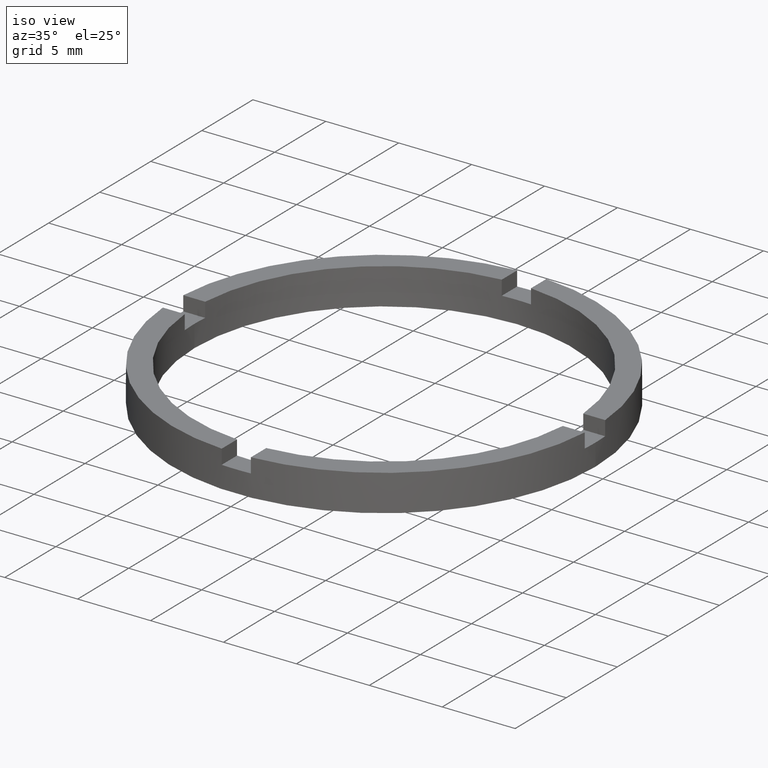
[diagram: clean part render]
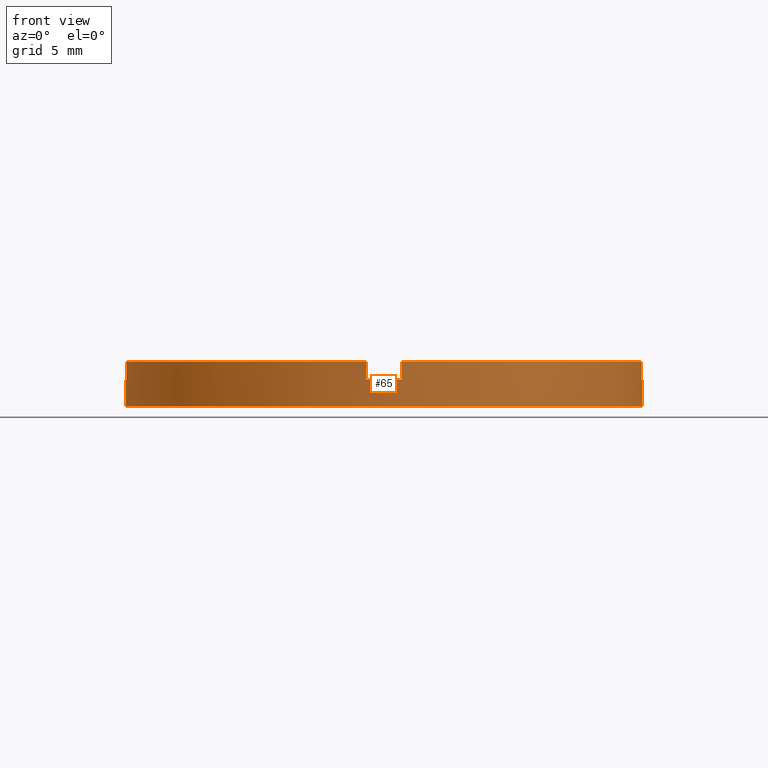
[diagram: tour spotlight — one face highlighted and labeled with its STEP entity id]
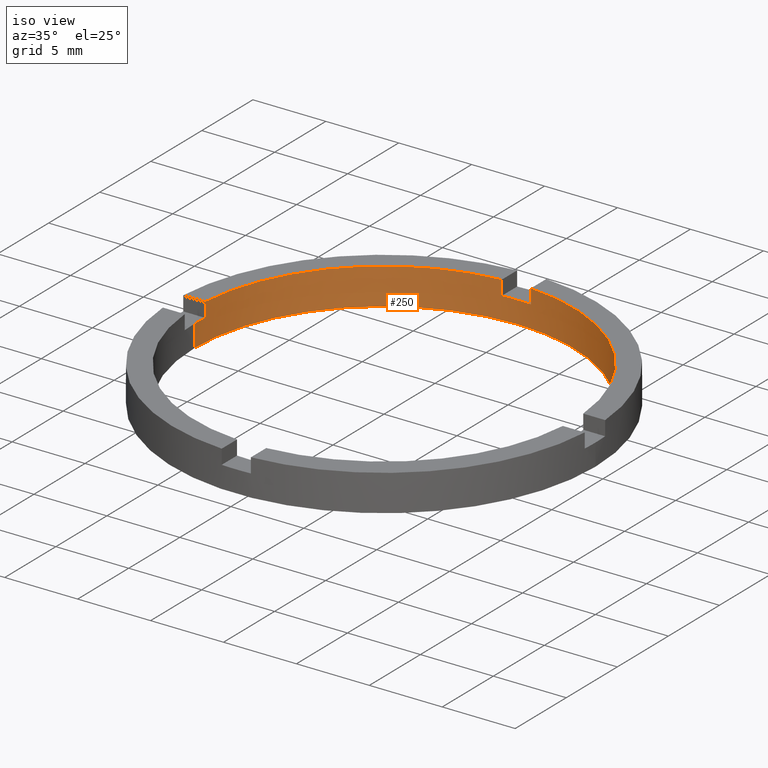
[diagram: tour spotlight — one face highlighted and labeled with its STEP entity id]
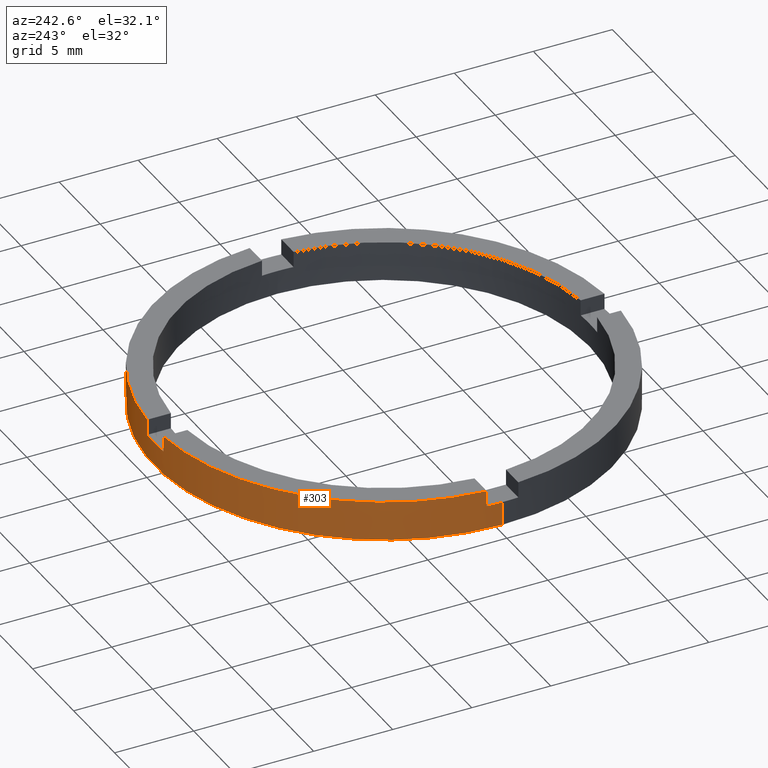
[diagram: tour spotlight — one face highlighted and labeled with its STEP entity id]
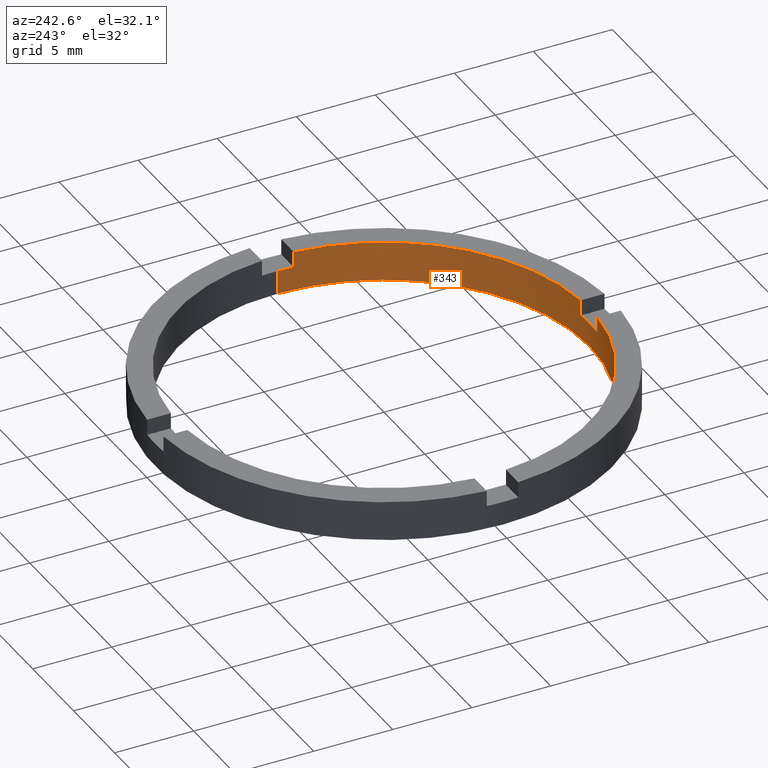
[diagram: tour spotlight — one face highlighted and labeled with its STEP entity id]
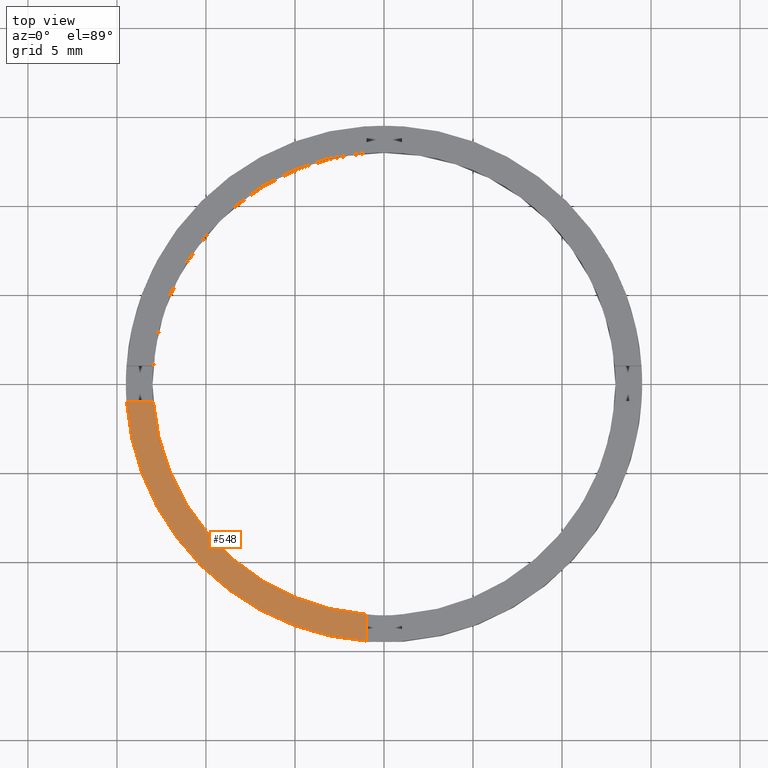
[diagram: tour spotlight — one face highlighted and labeled with its STEP entity id]
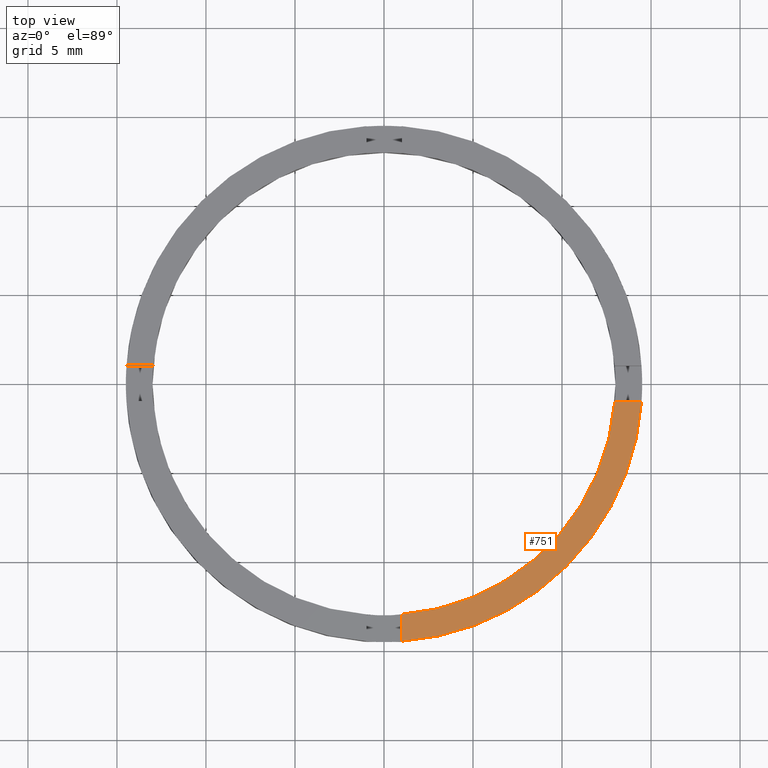
[diagram: tour spotlight — one face highlighted and labeled with its STEP entity id]
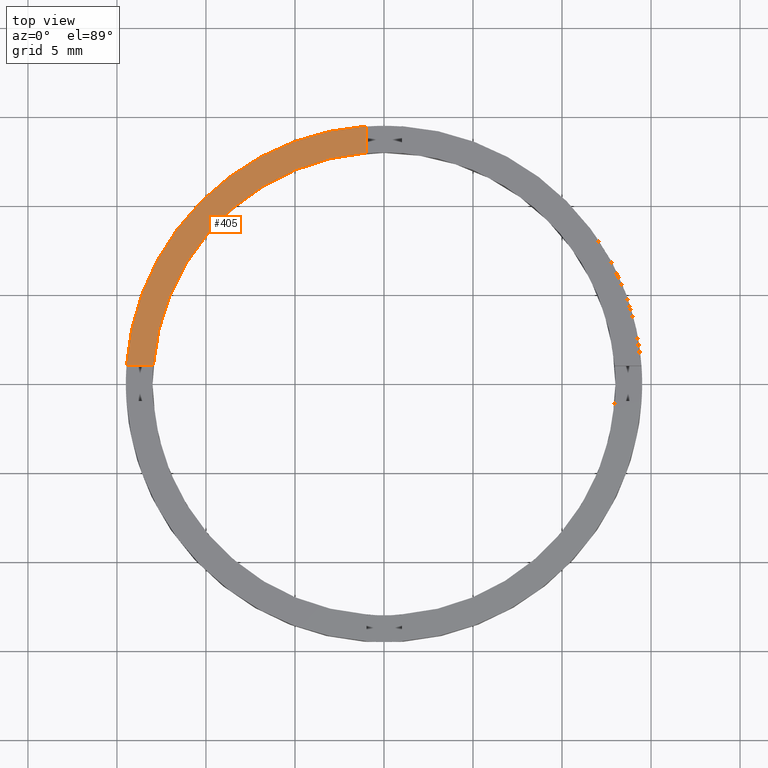
[diagram: tour spotlight — one face highlighted and labeled with its STEP entity id]
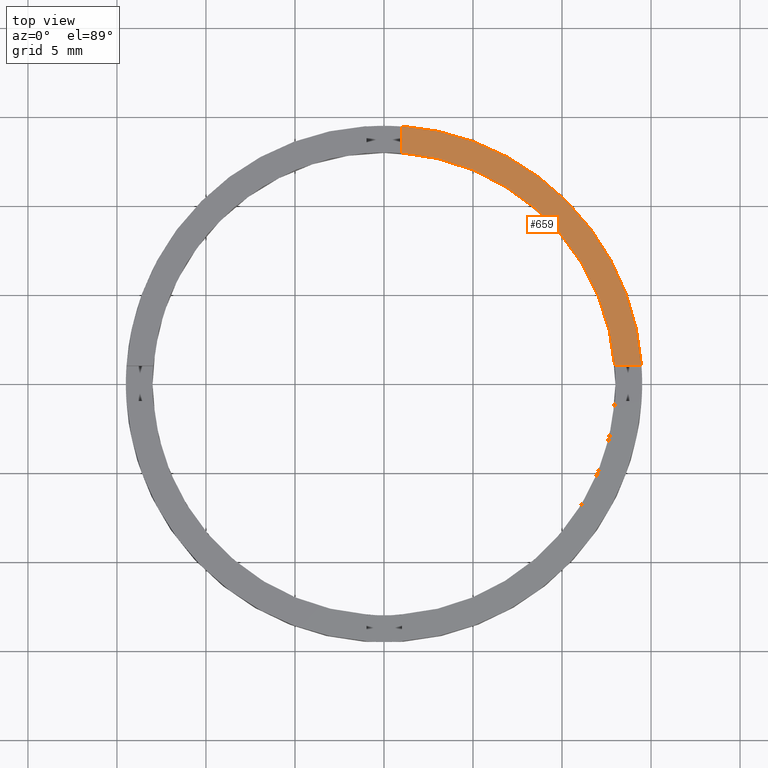
[diagram: tour spotlight — one face highlighted and labeled with its STEP entity id]
A machine part: a face-by-face anatomy tour. The part has 21 B-rep faces; the first image is the clean iso view, then the 8 largest visible faces are spotlighted one at a time (largest first), each with its STEP entity span.

Face 1 — front view, entity #65. In plain terms, the highlighted cylindrical surface (partial cylindrical patch) has radius 14.5 mm, axis along (-0, -0, -1).
Definition (entity closure, byte-faithful):
#2 = DIRECTION ( 'NONE',  ( 1.000000000000000000, 0.000000000000000000, 0.000000000000000000 ) ) ;
#6 = ORIENTED_EDGE ( 'NONE', *, *, #137, .T. ) ;
#13 = ORIENTED_EDGE ( 'NONE', *, *, #627, .F. ) ;
#15 = VERTEX_POINT ( 'NONE', #617 ) ;
#37 = AXIS2_PLACEMENT_3D ( 'NONE', #550, #91, #2 ) ;
#44 = VECTOR ( 'NONE', #604, 1000.000000000000000 ) ;
#46 = EDGE_CURVE ( 'NONE', #165, #382, #257, .T. ) ;
#54 = VECTOR ( 'NONE', #364, 1000.000000000000000 ) ;
#65 = ADVANCED_FACE ( 'NONE', ( #779 ), #251, .T. ) ;
#67 = EDGE_CURVE ( 'NONE', #178, #695, #503, .T. ) ;
#86 = EDGE_CURVE ( 'NONE', #197, #382, #776, .T. ) ;
#91 = DIRECTION ( 'NONE',  ( 0.000000000000000000, 0.000000000000000000, 1.000000000000000000 ) ) ;
#101 = CARTESIAN_POINT ( 'NONE',  ( 14.50000000000000000, 1.775737858763662015E-15, 1.500000000000000000 ) ) ;
#110 = DIRECTION ( 'NONE',  ( 1.000000000000000000, 0.000000000000000000, 0.000000000000000000 ) ) ;
#112 = AXIS2_PLACEMENT_3D ( 'NONE', #300, #204, #742 ) ;
#118 = CIRCLE ( 'NONE', #275, 14.50000000000000000 ) ;
#126 = EDGE_LOOP ( 'NONE', ( #136, #421, #6, #271, #434, #657, #189, #132, #450, #13, #538, #532 ) ) ;
#127 = CARTESIAN_POINT ( 'NONE',  ( 0.000000000000000000, 0.000000000000000000, 2.500000000000000000 ) ) ;
#132 = ORIENTED_EDGE ( 'NONE', *, *, #67, .F. ) ;
#134 = VERTEX_POINT ( 'NONE', #352 ) ;
#136 = ORIENTED_EDGE ( 'NONE', *, *, #46, .F. ) ;
#137 = EDGE_CURVE ( 'NONE', #139, #134, #687, .T. ) ;
#139 = VERTEX_POINT ( 'NONE', #361 ) ;
#141 = CARTESIAN_POINT ( 'NONE',  ( 14.50000000000000000, 1.775737858763662015E-15, 0.000000000000000000 ) ) ;
#145 = VERTEX_POINT ( 'NONE', #612 ) ;
#165 = VERTEX_POINT ( 'NONE', #101 ) ;
#178 = VERTEX_POINT ( 'NONE', #328 ) ;
#189 = ORIENTED_EDGE ( 'NONE', *, *, #655, .T. ) ;
#197 = VERTEX_POINT ( 'NONE', #245 ) ;
#204 = DIRECTION ( 'NONE',  ( 0.000000000000000000, 0.000000000000000000, 1.000000000000000000 ) ) ;
#239 = DIRECTION ( 'NONE',  ( -0.000000000000000000, -0.000000000000000000, -1.000000000000000000 ) ) ;
#245 = CARTESIAN_POINT ( 'NONE',  ( -14.50000000000000000, 0.000000000000000000, 0.000000000000000000 ) ) ;
#249 = AXIS2_PLACEMENT_3D ( 'NONE', #127, #565, #258 ) ;
#251 = CYLINDRICAL_SURFACE ( 'NONE', #249, 14.50000000000000000 ) ;
#253 = CARTESIAN_POINT ( 'NONE',  ( -1.000000000000162981, -14.46547614148942174, 2.500000000000000000 ) ) ;
#257 = LINE ( 'NONE', #357, #521 ) ;
#258 = DIRECTION ( 'NONE',  ( -1.000000000000000000, 0.000000000000000000, 0.000000000000000000 ) ) ;
#270 = EDGE_CURVE ( 'NONE', #698, #778, #475, .T. ) ;
#271 = ORIENTED_EDGE ( 'NONE', *, *, #344, .F. ) ;
#272 = DIRECTION ( 'NONE',  ( 1.000000000000000000, 0.000000000000000000, 0.000000000000000000 ) ) ;
#275 = AXIS2_PLACEMENT_3D ( 'NONE', #754, #673, #110 ) ;
#292 = CIRCLE ( 'NONE', #112, 14.50000000000000000 ) ;
#293 = LINE ( 'NONE', #253, #44 ) ;
#298 = CIRCLE ( 'NONE', #37, 14.50000000000000000 ) ;
#300 = CARTESIAN_POINT ( 'NONE',  ( 0.000000000000000000, 0.000000000000000000, 1.500000000000000000 ) ) ;
#325 = CARTESIAN_POINT ( 'NONE',  ( -1.000000000000162981, -14.46547614148942174, 1.500000000000000000 ) ) ;
#328 = CARTESIAN_POINT ( 'NONE',  ( -14.46547614148943062, -1.000000000000022871, 2.500000000000000000 ) ) ;
#344 = EDGE_CURVE ( 'NONE', #698, #134, #735, .T. ) ;
#350 = CARTESIAN_POINT ( 'NONE',  ( -14.46547614148943062, -1.000000000000022871, 2.500000000000000000 ) ) ;
#352 = CARTESIAN_POINT ( 'NONE',  ( 14.46547614148942174, -1.000000000000159428, 2.500000000000000000 ) ) ;
#357 = CARTESIAN_POINT ( 'NONE',  ( 14.50000000000000000, 1.775737858763662015E-15, 2.500000000000000000 ) ) ;
#361 = CARTESIAN_POINT ( 'NONE',  ( 14.46547614148942174, -1.000000000000159428, 1.500000000000000000 ) ) ;
#364 = DIRECTION ( 'NONE',  ( -0.000000000000000000, -0.000000000000000000, -1.000000000000000000 ) ) ;
#382 = VERTEX_POINT ( 'NONE', #141 ) ;
#403 = VERTEX_POINT ( 'NONE', #325 ) ;
#421 = ORIENTED_EDGE ( 'NONE', *, *, #609, .F. ) ;
#434 = ORIENTED_EDGE ( 'NONE', *, *, #270, .T. ) ;
#440 = VECTOR ( 'NONE', #569, 1000.000000000000000 ) ;
#450 = ORIENTED_EDGE ( 'NONE', *, *, #723, .T. ) ;
#455 = AXIS2_PLACEMENT_3D ( 'NONE', #515, #615, #510 ) ;
#470 = VECTOR ( 'NONE', #658, 1000.000000000000000 ) ;
#475 = LINE ( 'NONE', #647, #470 ) ;
#482 = EDGE_CURVE ( 'NONE', #15, #197, #576, .T. ) ;
#502 = DIRECTION ( 'NONE',  ( 1.000000000000000000, 0.000000000000000000, 0.000000000000000000 ) ) ;
#503 = CIRCLE ( 'NONE', #624, 14.50000000000000000 ) ;
#510 = DIRECTION ( 'NONE',  ( 1.000000000000000000, 0.000000000000000000, 0.000000000000000000 ) ) ;
#515 = CARTESIAN_POINT ( 'NONE',  ( 0.000000000000000000, 0.000000000000000000, 2.500000000000000000 ) ) ;
#516 = CARTESIAN_POINT ( 'NONE',  ( 0.000000000000000000, 0.000000000000000000, 0.000000000000000000 ) ) ;
#521 = VECTOR ( 'NONE', #558, 1000.000000000000000 ) ;
#532 = ORIENTED_EDGE ( 'NONE', *, *, #86, .T. ) ;
#538 = ORIENTED_EDGE ( 'NONE', *, *, #482, .T. ) ;
#550 = CARTESIAN_POINT ( 'NONE',  ( 0.000000000000000000, 0.000000000000000000, 1.500000000000000000 ) ) ;
#556 = VECTOR ( 'NONE', #239, 1000.000000000000000 ) ;
#558 = DIRECTION ( 'NONE',  ( -0.000000000000000000, -0.000000000000000000, -1.000000000000000000 ) ) ;
#561 = CARTESIAN_POINT ( 'NONE',  ( -14.50000000000000000, 0.000000000000000000, 2.500000000000000000 ) ) ;
#564 = LINE ( 'NONE', #350, #556 ) ;
#565 = DIRECTION ( 'NONE',  ( -0.000000000000000000, -0.000000000000000000, -1.000000000000000000 ) ) ;
#569 = DIRECTION ( 'NONE',  ( 0.000000000000000000, 0.000000000000000000, 1.000000000000000000 ) ) ;
#576 = LINE ( 'NONE', #561, #54 ) ;
#599 = CARTESIAN_POINT ( 'NONE',  ( -1.000000000000162981, -14.46547614148942174, 2.500000000000000000 ) ) ;
#604 = DIRECTION ( 'NONE',  ( 0.000000000000000000, 0.000000000000000000, 1.000000000000000000 ) ) ;
#605 = CARTESIAN_POINT ( 'NONE',  ( 0.000000000000000000, 0.000000000000000000, 2.500000000000000000 ) ) ;
#609 = EDGE_CURVE ( 'NONE', #139, #165, #292, .T. ) ;
#612 = CARTESIAN_POINT ( 'NONE',  ( -14.46547614148943062, -1.000000000000022871, 1.500000000000000000 ) ) ;
#615 = DIRECTION ( 'NONE',  ( 0.000000000000000000, 0.000000000000000000, 1.000000000000000000 ) ) ;
#617 = CARTESIAN_POINT ( 'NONE',  ( -14.50000000000000000, 0.000000000000000000, 1.500000000000000000 ) ) ;
#624 = AXIS2_PLACEMENT_3D ( 'NONE', #605, #689, #272 ) ;
#627 = EDGE_CURVE ( 'NONE', #15, #145, #298, .T. ) ;
#632 = CARTESIAN_POINT ( 'NONE',  ( 0.9999999999998369082, -14.46547614148944483, 2.500000000000000000 ) ) ;
#647 = CARTESIAN_POINT ( 'NONE',  ( 0.9999999999998369082, -14.46547614148944483, 2.500000000000000000 ) ) ;
#650 = CARTESIAN_POINT ( 'NONE',  ( 0.9999999999998369082, -14.46547614148944483, 1.500000000000000000 ) ) ;
#655 = EDGE_CURVE ( 'NONE', #403, #695, #293, .T. ) ;
#657 = ORIENTED_EDGE ( 'NONE', *, *, #783, .F. ) ;
#658 = DIRECTION ( 'NONE',  ( -0.000000000000000000, -0.000000000000000000, -1.000000000000000000 ) ) ;
#660 = AXIS2_PLACEMENT_3D ( 'NONE', #516, #684, #502 ) ;
#673 = DIRECTION ( 'NONE',  ( -0.000000000000000000, 0.000000000000000000, 1.000000000000000000 ) ) ;
#675 = CARTESIAN_POINT ( 'NONE',  ( 14.46547614148942174, -1.000000000000159428, 2.500000000000000000 ) ) ;
#684 = DIRECTION ( 'NONE',  ( 0.000000000000000000, 0.000000000000000000, 1.000000000000000000 ) ) ;
#687 = LINE ( 'NONE', #675, #440 ) ;
#689 = DIRECTION ( 'NONE',  ( 0.000000000000000000, 0.000000000000000000, 1.000000000000000000 ) ) ;
#695 = VERTEX_POINT ( 'NONE', #599 ) ;
#698 = VERTEX_POINT ( 'NONE', #632 ) ;
#723 = EDGE_CURVE ( 'NONE', #178, #145, #564, .T. ) ;
#735 = CIRCLE ( 'NONE', #455, 14.50000000000000000 ) ;
#742 = DIRECTION ( 'NONE',  ( 1.000000000000000000, 0.000000000000000000, 0.000000000000000000 ) ) ;
#754 = CARTESIAN_POINT ( 'NONE',  ( 0.000000000000000000, 0.000000000000000000, 1.500000000000000000 ) ) ;
#776 = CIRCLE ( 'NONE', #660, 14.50000000000000000 ) ;
#778 = VERTEX_POINT ( 'NONE', #650 ) ;
#779 = FACE_OUTER_BOUND ( 'NONE', #126, .T. ) ;
#783 = EDGE_CURVE ( 'NONE', #403, #778, #118, .T. ) ;

Face 2 — iso view, entity #250. In plain terms, the highlighted cylindrical surface (partial cylindrical patch) has radius 13 mm, axis along (-0, -0, -1).
Definition (entity closure, byte-faithful):
#1 = LINE ( 'NONE', #370, #241 ) ;
#9 = EDGE_CURVE ( 'NONE', #722, #654, #1, .T. ) ;
#17 = VERTEX_POINT ( 'NONE', #523 ) ;
#19 = VERTEX_POINT ( 'NONE', #620 ) ;
#21 = CARTESIAN_POINT ( 'NONE',  ( 13.00000000000000178, 1.592040838891559293E-15, 1.500000000000000000 ) ) ;
#33 = CARTESIAN_POINT ( 'NONE',  ( -12.96148139681572253, 0.9999999999999776845, 2.500000000000000000 ) ) ;
#41 = DIRECTION ( 'NONE',  ( 0.000000000000000000, 0.000000000000000000, 1.000000000000000000 ) ) ;
#45 = CARTESIAN_POINT ( 'NONE',  ( 0.000000000000000000, 0.000000000000000000, 0.000000000000000000 ) ) ;
#49 = CIRCLE ( 'NONE', #412, 13.00000000000000178 ) ;
#64 = DIRECTION ( 'NONE',  ( 1.000000000000000000, 0.000000000000000000, 0.000000000000000000 ) ) ;
#68 = EDGE_CURVE ( 'NONE', #654, #260, #526, .T. ) ;
#73 = EDGE_CURVE ( 'NONE', #688, #19, #235, .T. ) ;
#79 = DIRECTION ( 'NONE',  ( -0.000000000000000000, -0.000000000000000000, -1.000000000000000000 ) ) ;
#93 = CARTESIAN_POINT ( 'NONE',  ( -1.000000000000024869, 12.96148139681571898, 2.500000000000000000 ) ) ;
#99 = EDGE_CURVE ( 'NONE', #636, #466, #771, .T. ) ;
#106 = EDGE_CURVE ( 'NONE', #688, #466, #192, .T. ) ;
#114 = VERTEX_POINT ( 'NONE', #562 ) ;
#120 = CARTESIAN_POINT ( 'NONE',  ( 0.9999999999999751310, 12.96148139681572431, 2.500000000000000000 ) ) ;
#146 = VERTEX_POINT ( 'NONE', #453 ) ;
#162 = VECTOR ( 'NONE', #41, 1000.000000000000000 ) ;
#170 = ORIENTED_EDGE ( 'NONE', *, *, #286, .T. ) ;
#177 = ORIENTED_EDGE ( 'NONE', *, *, #234, .T. ) ;
#183 = DIRECTION ( 'NONE',  ( -0.000000000000000000, -0.000000000000000000, -1.000000000000000000 ) ) ;
#190 = CARTESIAN_POINT ( 'NONE',  ( 0.000000000000000000, 0.000000000000000000, 1.500000000000000000 ) ) ;
#192 = CIRCLE ( 'NONE', #504, 13.00000000000000178 ) ;
#198 = CARTESIAN_POINT ( 'NONE',  ( -12.96148139681572253, 0.9999999999999776845, 2.500000000000000000 ) ) ;
#202 = CIRCLE ( 'NONE', #354, 13.00000000000000178 ) ;
#216 = ORIENTED_EDGE ( 'NONE', *, *, #9, .F. ) ;
#217 = VECTOR ( 'NONE', #713, 1000.000000000000000 ) ;
#224 = CYLINDRICAL_SURFACE ( 'NONE', #238, 13.00000000000000178 ) ;
#225 = CIRCLE ( 'NONE', #541, 13.00000000000000178 ) ;
#227 = DIRECTION ( 'NONE',  ( -1.000000000000000000, 0.000000000000000000, 0.000000000000000000 ) ) ;
#234 = EDGE_CURVE ( 'NONE', #636, #678, #225, .T. ) ;
#235 = LINE ( 'NONE', #347, #512 ) ;
#238 = AXIS2_PLACEMENT_3D ( 'NONE', #301, #79, #227 ) ;
#241 = VECTOR ( 'NONE', #584, 1000.000000000000000 ) ;
#244 = DIRECTION ( 'NONE',  ( 0.000000000000000000, 0.000000000000000000, 1.000000000000000000 ) ) ;
#246 = EDGE_LOOP ( 'NONE', ( #216, #170, #426, #750, #755, #177, #719, #642, #486, #721, #424, #381 ) ) ;
#247 = EDGE_CURVE ( 'NONE', #114, #678, #454, .T. ) ;
#250 = ADVANCED_FACE ( 'NONE', ( #457 ), #224, .F. ) ;
#256 = EDGE_CURVE ( 'NONE', #146, #260, #733, .T. ) ;
#260 = VERTEX_POINT ( 'NONE', #553 ) ;
#262 = CARTESIAN_POINT ( 'NONE',  ( 0.9999999999999751310, 12.96148139681572431, 2.500000000000000000 ) ) ;
#286 = EDGE_CURVE ( 'NONE', #722, #19, #202, .T. ) ;
#289 = AXIS2_PLACEMENT_3D ( 'NONE', #746, #602, #64 ) ;
#301 = CARTESIAN_POINT ( 'NONE',  ( 0.000000000000000000, 0.000000000000000000, 2.500000000000000000 ) ) ;
#312 = CARTESIAN_POINT ( 'NONE',  ( 0.000000000000000000, 0.000000000000000000, 1.500000000000000000 ) ) ;
#316 = DIRECTION ( 'NONE',  ( -0.000000000000000000, -0.000000000000000000, -1.000000000000000000 ) ) ;
#338 = EDGE_CURVE ( 'NONE', #114, #371, #463, .T. ) ;
#347 = CARTESIAN_POINT ( 'NONE',  ( 12.96148139681573497, 0.9999999999998406830, 2.500000000000000000 ) ) ;
#354 = AXIS2_PLACEMENT_3D ( 'NONE', #312, #737, #741 ) ;
#369 = CARTESIAN_POINT ( 'NONE',  ( -13.00000000000000178, 0.000000000000000000, 2.500000000000000000 ) ) ;
#370 = CARTESIAN_POINT ( 'NONE',  ( 13.00000000000000178, 1.592040838891559293E-15, 2.500000000000000000 ) ) ;
#371 = VERTEX_POINT ( 'NONE', #33 ) ;
#377 = DIRECTION ( 'NONE',  ( 1.000000000000000000, 0.000000000000000000, 0.000000000000000000 ) ) ;
#381 = ORIENTED_EDGE ( 'NONE', *, *, #68, .F. ) ;
#412 = AXIS2_PLACEMENT_3D ( 'NONE', #190, #492, #554 ) ;
#424 = ORIENTED_EDGE ( 'NONE', *, *, #256, .T. ) ;
#426 = ORIENTED_EDGE ( 'NONE', *, *, #73, .F. ) ;
#436 = DIRECTION ( 'NONE',  ( 0.000000000000000000, 0.000000000000000000, 1.000000000000000000 ) ) ;
#439 = CARTESIAN_POINT ( 'NONE',  ( -1.000000000000024869, 12.96148139681571898, 1.500000000000000000 ) ) ;
#453 = CARTESIAN_POINT ( 'NONE',  ( -13.00000000000000178, 0.000000000000000000, 1.500000000000000000 ) ) ;
#454 = LINE ( 'NONE', #93, #479 ) ;
#457 = FACE_OUTER_BOUND ( 'NONE', #246, .T. ) ;
#460 = DIRECTION ( 'NONE',  ( 0.000000000000000000, 0.000000000000000000, 1.000000000000000000 ) ) ;
#463 = CIRCLE ( 'NONE', #289, 13.00000000000000178 ) ;
#466 = VERTEX_POINT ( 'NONE', #262 ) ;
#478 = CARTESIAN_POINT ( 'NONE',  ( 0.000000000000000000, 0.000000000000000000, 1.500000000000000000 ) ) ;
#479 = VECTOR ( 'NONE', #183, 1000.000000000000000 ) ;
#481 = DIRECTION ( 'NONE',  ( 0.000000000000000000, -0.000000000000000000, 1.000000000000000000 ) ) ;
#486 = ORIENTED_EDGE ( 'NONE', *, *, #601, .F. ) ;
#492 = DIRECTION ( 'NONE',  ( 0.000000000000000000, 0.000000000000000000, 1.000000000000000000 ) ) ;
#504 = AXIS2_PLACEMENT_3D ( 'NONE', #766, #460, #623 ) ;
#506 = DIRECTION ( 'NONE',  ( 1.000000000000000000, 0.000000000000000000, 0.000000000000000000 ) ) ;
#512 = VECTOR ( 'NONE', #316, 1000.000000000000000 ) ;
#523 = CARTESIAN_POINT ( 'NONE',  ( -12.96148139681572253, 0.9999999999999776845, 1.500000000000000000 ) ) ;
#526 = CIRCLE ( 'NONE', #712, 13.00000000000000178 ) ;
#541 = AXIS2_PLACEMENT_3D ( 'NONE', #478, #481, #377 ) ;
#545 = LINE ( 'NONE', #198, #552 ) ;
#552 = VECTOR ( 'NONE', #244, 1000.000000000000000 ) ;
#553 = CARTESIAN_POINT ( 'NONE',  ( -13.00000000000000178, 0.000000000000000000, 0.000000000000000000 ) ) ;
#554 = DIRECTION ( 'NONE',  ( 1.000000000000000000, 0.000000000000000000, 0.000000000000000000 ) ) ;
#562 = CARTESIAN_POINT ( 'NONE',  ( -1.000000000000024869, 12.96148139681571898, 2.500000000000000000 ) ) ;
#584 = DIRECTION ( 'NONE',  ( -0.000000000000000000, -0.000000000000000000, -1.000000000000000000 ) ) ;
#595 = CARTESIAN_POINT ( 'NONE',  ( 0.9999999999999751310, 12.96148139681572431, 1.500000000000000000 ) ) ;
#601 = EDGE_CURVE ( 'NONE', #17, #371, #545, .T. ) ;
#602 = DIRECTION ( 'NONE',  ( 0.000000000000000000, 0.000000000000000000, 1.000000000000000000 ) ) ;
#620 = CARTESIAN_POINT ( 'NONE',  ( 12.96148139681573497, 0.9999999999998406830, 1.500000000000000000 ) ) ;
#623 = DIRECTION ( 'NONE',  ( 1.000000000000000000, 0.000000000000000000, 0.000000000000000000 ) ) ;
#636 = VERTEX_POINT ( 'NONE', #595 ) ;
#641 = CARTESIAN_POINT ( 'NONE',  ( 12.96148139681573497, 0.9999999999998406830, 2.500000000000000000 ) ) ;
#642 = ORIENTED_EDGE ( 'NONE', *, *, #338, .T. ) ;
#654 = VERTEX_POINT ( 'NONE', #664 ) ;
#664 = CARTESIAN_POINT ( 'NONE',  ( 13.00000000000000178, 1.592040838891559293E-15, 0.000000000000000000 ) ) ;
#678 = VERTEX_POINT ( 'NONE', #439 ) ;
#688 = VERTEX_POINT ( 'NONE', #641 ) ;
#712 = AXIS2_PLACEMENT_3D ( 'NONE', #45, #436, #506 ) ;
#713 = DIRECTION ( 'NONE',  ( -0.000000000000000000, -0.000000000000000000, -1.000000000000000000 ) ) ;
#719 = ORIENTED_EDGE ( 'NONE', *, *, #247, .F. ) ;
#721 = ORIENTED_EDGE ( 'NONE', *, *, #770, .T. ) ;
#722 = VERTEX_POINT ( 'NONE', #21 ) ;
#733 = LINE ( 'NONE', #369, #217 ) ;
#737 = DIRECTION ( 'NONE',  ( 0.000000000000000000, 0.000000000000000000, 1.000000000000000000 ) ) ;
#741 = DIRECTION ( 'NONE',  ( 1.000000000000000000, 0.000000000000000000, 0.000000000000000000 ) ) ;
#746 = CARTESIAN_POINT ( 'NONE',  ( 0.000000000000000000, 0.000000000000000000, 2.500000000000000000 ) ) ;
#750 = ORIENTED_EDGE ( 'NONE', *, *, #106, .T. ) ;
#755 = ORIENTED_EDGE ( 'NONE', *, *, #99, .F. ) ;
#766 = CARTESIAN_POINT ( 'NONE',  ( 0.000000000000000000, 0.000000000000000000, 2.500000000000000000 ) ) ;
#770 = EDGE_CURVE ( 'NONE', #17, #146, #49, .T. ) ;
#771 = LINE ( 'NONE', #120, #162 ) ;

Face 3 — auxiliary view, entity #303. In plain terms, the highlighted cylindrical surface (partial cylindrical patch) has radius 14.5 mm, axis along (-0, -0, -1).
Definition (entity closure, byte-faithful):
#15 = VERTEX_POINT ( 'NONE', #617 ) ;
#18 = DIRECTION ( 'NONE',  ( 1.000000000000000000, 0.000000000000000000, 0.000000000000000000 ) ) ;
#30 = VECTOR ( 'NONE', #607, 1000.000000000000000 ) ;
#31 = CIRCLE ( 'NONE', #648, 14.50000000000000000 ) ;
#39 = LINE ( 'NONE', #544, #294 ) ;
#40 = CARTESIAN_POINT ( 'NONE',  ( 0.000000000000000000, 0.000000000000000000, 1.500000000000000000 ) ) ;
#46 = EDGE_CURVE ( 'NONE', #165, #382, #257, .T. ) ;
#54 = VECTOR ( 'NONE', #364, 1000.000000000000000 ) ;
#58 = AXIS2_PLACEMENT_3D ( 'NONE', #40, #315, #323 ) ;
#70 = DIRECTION ( 'NONE',  ( 1.000000000000000000, 0.000000000000000000, 0.000000000000000000 ) ) ;
#78 = CARTESIAN_POINT ( 'NONE',  ( 0.9999999999999751310, 14.46547614148943417, 2.500000000000000000 ) ) ;
#101 = CARTESIAN_POINT ( 'NONE',  ( 14.50000000000000000, 1.775737858763662015E-15, 1.500000000000000000 ) ) ;
#102 = AXIS2_PLACEMENT_3D ( 'NONE', #314, #417, #606 ) ;
#117 = VERTEX_POINT ( 'NONE', #702 ) ;
#141 = CARTESIAN_POINT ( 'NONE',  ( 14.50000000000000000, 1.775737858763662015E-15, 0.000000000000000000 ) ) ;
#158 = EDGE_CURVE ( 'NONE', #117, #645, #449, .T. ) ;
#159 = ORIENTED_EDGE ( 'NONE', *, *, #201, .F. ) ;
#160 = VERTEX_POINT ( 'NONE', #608 ) ;
#165 = VERTEX_POINT ( 'NONE', #101 ) ;
#171 = ORIENTED_EDGE ( 'NONE', *, *, #367, .T. ) ;
#173 = AXIS2_PLACEMENT_3D ( 'NONE', #418, #493, #781 ) ;
#176 = ORIENTED_EDGE ( 'NONE', *, *, #482, .F. ) ;
#181 = VERTEX_POINT ( 'NONE', #586 ) ;
#197 = VERTEX_POINT ( 'NONE', #245 ) ;
#201 = EDGE_CURVE ( 'NONE', #165, #423, #413, .T. ) ;
#209 = AXIS2_PLACEMENT_3D ( 'NONE', #393, #336, #543 ) ;
#219 = EDGE_CURVE ( 'NONE', #442, #160, #752, .T. ) ;
#229 = CIRCLE ( 'NONE', #58, 14.50000000000000000 ) ;
#240 = VERTEX_POINT ( 'NONE', #396 ) ;
#245 = CARTESIAN_POINT ( 'NONE',  ( -14.50000000000000000, 0.000000000000000000, 0.000000000000000000 ) ) ;
#254 = CARTESIAN_POINT ( 'NONE',  ( 0.000000000000000000, 0.000000000000000000, 2.500000000000000000 ) ) ;
#257 = LINE ( 'NONE', #357, #521 ) ;
#294 = VECTOR ( 'NONE', #633, 1000.000000000000000 ) ;
#303 = ADVANCED_FACE ( 'NONE', ( #477 ), #468, .T. ) ;
#314 = CARTESIAN_POINT ( 'NONE',  ( 0.000000000000000000, 0.000000000000000000, 1.500000000000000000 ) ) ;
#315 = DIRECTION ( 'NONE',  ( 0.000000000000000000, 0.000000000000000000, 1.000000000000000000 ) ) ;
#323 = DIRECTION ( 'NONE',  ( 1.000000000000000000, 0.000000000000000000, 0.000000000000000000 ) ) ;
#330 = DIRECTION ( 'NONE',  ( 0.000000000000000000, 0.000000000000000000, 1.000000000000000000 ) ) ;
#336 = DIRECTION ( 'NONE',  ( -0.000000000000000000, -0.000000000000000000, -1.000000000000000000 ) ) ;
#351 = DIRECTION ( 'NONE',  ( 0.000000000000000000, 0.000000000000000000, 1.000000000000000000 ) ) ;
#357 = CARTESIAN_POINT ( 'NONE',  ( 14.50000000000000000, 1.775737858763662015E-15, 2.500000000000000000 ) ) ;
#363 = AXIS2_PLACEMENT_3D ( 'NONE', #511, #580, #18 ) ;
#364 = DIRECTION ( 'NONE',  ( -0.000000000000000000, -0.000000000000000000, -1.000000000000000000 ) ) ;
#367 = EDGE_CURVE ( 'NONE', #240, #645, #472, .T. ) ;
#382 = VERTEX_POINT ( 'NONE', #141 ) ;
#392 = ORIENTED_EDGE ( 'NONE', *, *, #761, .T. ) ;
#393 = CARTESIAN_POINT ( 'NONE',  ( 0.000000000000000000, 0.000000000000000000, 2.500000000000000000 ) ) ;
#396 = CARTESIAN_POINT ( 'NONE',  ( 0.9999999999999751310, 14.46547614148943417, 1.500000000000000000 ) ) ;
#401 = ORIENTED_EDGE ( 'NONE', *, *, #46, .T. ) ;
#413 = CIRCLE ( 'NONE', #173, 14.50000000000000000 ) ;
#416 = ORIENTED_EDGE ( 'NONE', *, *, #697, .F. ) ;
#417 = DIRECTION ( 'NONE',  ( 0.000000000000000000, -0.000000000000000000, 1.000000000000000000 ) ) ;
#418 = CARTESIAN_POINT ( 'NONE',  ( 0.000000000000000000, 0.000000000000000000, 1.500000000000000000 ) ) ;
#422 = EDGE_CURVE ( 'NONE', #442, #15, #229, .T. ) ;
#423 = VERTEX_POINT ( 'NONE', #428 ) ;
#427 = CARTESIAN_POINT ( 'NONE',  ( 0.9999999999999751310, 14.46547614148943417, 2.500000000000000000 ) ) ;
#428 = CARTESIAN_POINT ( 'NONE',  ( 14.46547614148944483, 0.9999999999998406830, 1.500000000000000000 ) ) ;
#429 = EDGE_LOOP ( 'NONE', ( #159, #401, #679, #176, #634, #667, #670, #437, #416, #171, #646, #392 ) ) ;
#437 = ORIENTED_EDGE ( 'NONE', *, *, #513, .T. ) ;
#442 = VERTEX_POINT ( 'NONE', #765 ) ;
#449 = CIRCLE ( 'NONE', #363, 14.50000000000000000 ) ;
#452 = DIRECTION ( 'NONE',  ( 0.000000000000000000, 0.000000000000000000, 1.000000000000000000 ) ) ;
#468 = CYLINDRICAL_SURFACE ( 'NONE', #209, 14.50000000000000000 ) ;
#472 = LINE ( 'NONE', #78, #494 ) ;
#477 = FACE_OUTER_BOUND ( 'NONE', #429, .T. ) ;
#482 = EDGE_CURVE ( 'NONE', #15, #197, #576, .T. ) ;
#493 = DIRECTION ( 'NONE',  ( 0.000000000000000000, 0.000000000000000000, 1.000000000000000000 ) ) ;
#494 = VECTOR ( 'NONE', #452, 1000.000000000000000 ) ;
#511 = CARTESIAN_POINT ( 'NONE',  ( 0.000000000000000000, 0.000000000000000000, 2.500000000000000000 ) ) ;
#513 = EDGE_CURVE ( 'NONE', #181, #531, #557, .T. ) ;
#521 = VECTOR ( 'NONE', #558, 1000.000000000000000 ) ;
#524 = EDGE_CURVE ( 'NONE', #382, #197, #31, .T. ) ;
#525 = CARTESIAN_POINT ( 'NONE',  ( 0.000000000000000000, 0.000000000000000000, 0.000000000000000000 ) ) ;
#527 = AXIS2_PLACEMENT_3D ( 'NONE', #254, #351, #674 ) ;
#531 = VERTEX_POINT ( 'NONE', #769 ) ;
#540 = EDGE_CURVE ( 'NONE', #181, #160, #567, .T. ) ;
#543 = DIRECTION ( 'NONE',  ( -1.000000000000000000, 0.000000000000000000, 0.000000000000000000 ) ) ;
#544 = CARTESIAN_POINT ( 'NONE',  ( 14.46547614148944483, 0.9999999999998406830, 2.500000000000000000 ) ) ;
#546 = CIRCLE ( 'NONE', #102, 14.50000000000000000 ) ;
#557 = LINE ( 'NONE', #701, #30 ) ;
#558 = DIRECTION ( 'NONE',  ( -0.000000000000000000, -0.000000000000000000, -1.000000000000000000 ) ) ;
#561 = CARTESIAN_POINT ( 'NONE',  ( -14.50000000000000000, 0.000000000000000000, 2.500000000000000000 ) ) ;
#567 = CIRCLE ( 'NONE', #527, 14.50000000000000000 ) ;
#576 = LINE ( 'NONE', #561, #54 ) ;
#580 = DIRECTION ( 'NONE',  ( 0.000000000000000000, 0.000000000000000000, 1.000000000000000000 ) ) ;
#583 = DIRECTION ( 'NONE',  ( 0.000000000000000000, 0.000000000000000000, 1.000000000000000000 ) ) ;
#586 = CARTESIAN_POINT ( 'NONE',  ( -1.000000000000024869, 14.46547614148943062, 2.500000000000000000 ) ) ;
#596 = CARTESIAN_POINT ( 'NONE',  ( -14.46547614148943417, 0.9999999999999772404, 2.500000000000000000 ) ) ;
#606 = DIRECTION ( 'NONE',  ( 1.000000000000000000, 0.000000000000000000, 0.000000000000000000 ) ) ;
#607 = DIRECTION ( 'NONE',  ( -0.000000000000000000, -0.000000000000000000, -1.000000000000000000 ) ) ;
#608 = CARTESIAN_POINT ( 'NONE',  ( -14.46547614148943417, 0.9999999999999772404, 2.500000000000000000 ) ) ;
#617 = CARTESIAN_POINT ( 'NONE',  ( -14.50000000000000000, 0.000000000000000000, 1.500000000000000000 ) ) ;
#633 = DIRECTION ( 'NONE',  ( -0.000000000000000000, -0.000000000000000000, -1.000000000000000000 ) ) ;
#634 = ORIENTED_EDGE ( 'NONE', *, *, #422, .F. ) ;
#645 = VERTEX_POINT ( 'NONE', #427 ) ;
#646 = ORIENTED_EDGE ( 'NONE', *, *, #158, .F. ) ;
#648 = AXIS2_PLACEMENT_3D ( 'NONE', #525, #583, #70 ) ;
#667 = ORIENTED_EDGE ( 'NONE', *, *, #219, .T. ) ;
#670 = ORIENTED_EDGE ( 'NONE', *, *, #540, .F. ) ;
#674 = DIRECTION ( 'NONE',  ( 1.000000000000000000, 0.000000000000000000, 0.000000000000000000 ) ) ;
#679 = ORIENTED_EDGE ( 'NONE', *, *, #524, .T. ) ;
#697 = EDGE_CURVE ( 'NONE', #240, #531, #546, .T. ) ;
#701 = CARTESIAN_POINT ( 'NONE',  ( -1.000000000000024869, 14.46547614148943062, 2.500000000000000000 ) ) ;
#702 = CARTESIAN_POINT ( 'NONE',  ( 14.46547614148944483, 0.9999999999998406830, 2.500000000000000000 ) ) ;
#730 = VECTOR ( 'NONE', #330, 1000.000000000000000 ) ;
#752 = LINE ( 'NONE', #596, #730 ) ;
#761 = EDGE_CURVE ( 'NONE', #117, #423, #39, .T. ) ;
#765 = CARTESIAN_POINT ( 'NONE',  ( -14.46547614148943417, 0.9999999999999772404, 1.500000000000000000 ) ) ;
#769 = CARTESIAN_POINT ( 'NONE',  ( -1.000000000000024869, 14.46547614148943062, 1.500000000000000000 ) ) ;
#781 = DIRECTION ( 'NONE',  ( 1.000000000000000000, 0.000000000000000000, 0.000000000000000000 ) ) ;

Face 4 — auxiliary view, entity #343. In plain terms, the highlighted cylindrical surface (partial cylindrical patch) has radius 13 mm, axis along (-0, -0, -1).
Definition (entity closure, byte-faithful):
#1 = LINE ( 'NONE', #370, #241 ) ;
#3 = ORIENTED_EDGE ( 'NONE', *, *, #297, .T. ) ;
#8 = CARTESIAN_POINT ( 'NONE',  ( 0.000000000000000000, 0.000000000000000000, 0.000000000000000000 ) ) ;
#9 = EDGE_CURVE ( 'NONE', #722, #654, #1, .T. ) ;
#16 = CARTESIAN_POINT ( 'NONE',  ( -12.96148139681571898, -1.000000000000022427, 1.500000000000000000 ) ) ;
#21 = CARTESIAN_POINT ( 'NONE',  ( 13.00000000000000178, 1.592040838891559293E-15, 1.500000000000000000 ) ) ;
#34 = LINE ( 'NONE', #182, #559 ) ;
#48 = DIRECTION ( 'NONE',  ( 0.000000000000000000, 0.000000000000000000, 1.000000000000000000 ) ) ;
#59 = CARTESIAN_POINT ( 'NONE',  ( 0.000000000000000000, 0.000000000000000000, 2.500000000000000000 ) ) ;
#60 = DIRECTION ( 'NONE',  ( 1.000000000000000000, 0.000000000000000000, 0.000000000000000000 ) ) ;
#61 = AXIS2_PLACEMENT_3D ( 'NONE', #59, #62, #332 ) ;
#62 = DIRECTION ( 'NONE',  ( 0.000000000000000000, 0.000000000000000000, 1.000000000000000000 ) ) ;
#82 = DIRECTION ( 'NONE',  ( 0.000000000000000000, 0.000000000000000000, 1.000000000000000000 ) ) ;
#90 = CARTESIAN_POINT ( 'NONE',  ( 0.000000000000000000, 0.000000000000000000, 1.500000000000000000 ) ) ;
#105 = CARTESIAN_POINT ( 'NONE',  ( 0.9999999999998366862, -12.96148139681573497, 2.500000000000000000 ) ) ;
#108 = VERTEX_POINT ( 'NONE', #324 ) ;
#113 = ORIENTED_EDGE ( 'NONE', *, *, #9, .T. ) ;
#122 = ORIENTED_EDGE ( 'NONE', *, *, #621, .T. ) ;
#123 = ORIENTED_EDGE ( 'NONE', *, *, #734, .F. ) ;
#131 = CARTESIAN_POINT ( 'NONE',  ( -12.96148139681571898, -1.000000000000022427, 2.500000000000000000 ) ) ;
#140 = VERTEX_POINT ( 'NONE', #443 ) ;
#146 = VERTEX_POINT ( 'NONE', #453 ) ;
#182 = CARTESIAN_POINT ( 'NONE',  ( -1.000000000000163203, -12.96148139681570832, 2.500000000000000000 ) ) ;
#193 = VERTEX_POINT ( 'NONE', #467 ) ;
#205 = DIRECTION ( 'NONE',  ( -0.000000000000000000, -0.000000000000000000, -1.000000000000000000 ) ) ;
#217 = VECTOR ( 'NONE', #713, 1000.000000000000000 ) ;
#221 = CIRCLE ( 'NONE', #753, 13.00000000000000178 ) ;
#222 = CARTESIAN_POINT ( 'NONE',  ( 0.9999999999998366862, -12.96148139681573497, 1.500000000000000000 ) ) ;
#230 = CARTESIAN_POINT ( 'NONE',  ( 0.000000000000000000, 0.000000000000000000, 2.500000000000000000 ) ) ;
#231 = VECTOR ( 'NONE', #694, 1000.000000000000000 ) ;
#241 = VECTOR ( 'NONE', #584, 1000.000000000000000 ) ;
#256 = EDGE_CURVE ( 'NONE', #146, #260, #733, .T. ) ;
#260 = VERTEX_POINT ( 'NONE', #553 ) ;
#278 = EDGE_CURVE ( 'NONE', #146, #653, #221, .T. ) ;
#279 = LINE ( 'NONE', #105, #290 ) ;
#288 = CIRCLE ( 'NONE', #358, 13.00000000000000178 ) ;
#290 = VECTOR ( 'NONE', #205, 1000.000000000000000 ) ;
#296 = DIRECTION ( 'NONE',  ( 0.000000000000000000, 0.000000000000000000, 1.000000000000000000 ) ) ;
#297 = EDGE_CURVE ( 'NONE', #459, #671, #739, .T. ) ;
#299 = VECTOR ( 'NONE', #710, 1000.000000000000000 ) ;
#309 = AXIS2_PLACEMENT_3D ( 'NONE', #337, #592, #346 ) ;
#324 = CARTESIAN_POINT ( 'NONE',  ( 0.9999999999998366862, -12.96148139681573497, 2.500000000000000000 ) ) ;
#332 = DIRECTION ( 'NONE',  ( 1.000000000000000000, 0.000000000000000000, 0.000000000000000000 ) ) ;
#337 = CARTESIAN_POINT ( 'NONE',  ( 0.000000000000000000, 0.000000000000000000, 1.500000000000000000 ) ) ;
#340 = CARTESIAN_POINT ( 'NONE',  ( 12.96148139681570832, -1.000000000000159428, 1.500000000000000000 ) ) ;
#343 = ADVANCED_FACE ( 'NONE', ( #484 ), #731, .F. ) ;
#346 = DIRECTION ( 'NONE',  ( 1.000000000000000000, 0.000000000000000000, 0.000000000000000000 ) ) ;
#355 = DIRECTION ( 'NONE',  ( -0.000000000000000000, -0.000000000000000000, -1.000000000000000000 ) ) ;
#358 = AXIS2_PLACEMENT_3D ( 'NONE', #230, #82, #529 ) ;
#362 = EDGE_CURVE ( 'NONE', #686, #722, #736, .T. ) ;
#369 = CARTESIAN_POINT ( 'NONE',  ( -13.00000000000000178, 0.000000000000000000, 2.500000000000000000 ) ) ;
#370 = CARTESIAN_POINT ( 'NONE',  ( 13.00000000000000178, 1.592040838891559293E-15, 2.500000000000000000 ) ) ;
#383 = VERTEX_POINT ( 'NONE', #222 ) ;
#397 = ORIENTED_EDGE ( 'NONE', *, *, #593, .F. ) ;
#402 = DIRECTION ( 'NONE',  ( 1.000000000000000000, 0.000000000000000000, 0.000000000000000000 ) ) ;
#425 = EDGE_LOOP ( 'NONE', ( #669, #113, #123, #637, #435, #431, #3, #700, #122, #476, #707, #397 ) ) ;
#431 = ORIENTED_EDGE ( 'NONE', *, *, #438, .F. ) ;
#435 = ORIENTED_EDGE ( 'NONE', *, *, #278, .T. ) ;
#438 = EDGE_CURVE ( 'NONE', #459, #653, #489, .T. ) ;
#443 = CARTESIAN_POINT ( 'NONE',  ( 12.96148139681570832, -1.000000000000159428, 2.500000000000000000 ) ) ;
#448 = CARTESIAN_POINT ( 'NONE',  ( 0.000000000000000000, 0.000000000000000000, 2.500000000000000000 ) ) ;
#453 = CARTESIAN_POINT ( 'NONE',  ( -13.00000000000000178, 0.000000000000000000, 1.500000000000000000 ) ) ;
#459 = VERTEX_POINT ( 'NONE', #131 ) ;
#465 = CARTESIAN_POINT ( 'NONE',  ( 12.96148139681570832, -1.000000000000159428, 2.500000000000000000 ) ) ;
#467 = CARTESIAN_POINT ( 'NONE',  ( -1.000000000000163203, -12.96148139681570832, 1.500000000000000000 ) ) ;
#471 = AXIS2_PLACEMENT_3D ( 'NONE', #568, #48, #683 ) ;
#476 = ORIENTED_EDGE ( 'NONE', *, *, #533, .F. ) ;
#484 = FACE_OUTER_BOUND ( 'NONE', #425, .T. ) ;
#489 = LINE ( 'NONE', #618, #231 ) ;
#496 = AXIS2_PLACEMENT_3D ( 'NONE', #8, #296, #60 ) ;
#529 = DIRECTION ( 'NONE',  ( 1.000000000000000000, 0.000000000000000000, 0.000000000000000000 ) ) ;
#533 = EDGE_CURVE ( 'NONE', #108, #383, #279, .T. ) ;
#553 = CARTESIAN_POINT ( 'NONE',  ( -13.00000000000000178, 0.000000000000000000, 0.000000000000000000 ) ) ;
#555 = CIRCLE ( 'NONE', #309, 13.00000000000000178 ) ;
#559 = VECTOR ( 'NONE', #727, 1000.000000000000000 ) ;
#560 = CIRCLE ( 'NONE', #496, 13.00000000000000178 ) ;
#563 = LINE ( 'NONE', #465, #299 ) ;
#568 = CARTESIAN_POINT ( 'NONE',  ( 0.000000000000000000, 0.000000000000000000, 1.500000000000000000 ) ) ;
#584 = DIRECTION ( 'NONE',  ( -0.000000000000000000, -0.000000000000000000, -1.000000000000000000 ) ) ;
#585 = EDGE_CURVE ( 'NONE', #108, #140, #288, .T. ) ;
#592 = DIRECTION ( 'NONE',  ( -0.000000000000000000, 0.000000000000000000, 1.000000000000000000 ) ) ;
#593 = EDGE_CURVE ( 'NONE', #686, #140, #563, .T. ) ;
#616 = EDGE_CURVE ( 'NONE', #193, #671, #34, .T. ) ;
#618 = CARTESIAN_POINT ( 'NONE',  ( -12.96148139681571898, -1.000000000000022427, 2.500000000000000000 ) ) ;
#621 = EDGE_CURVE ( 'NONE', #193, #383, #555, .T. ) ;
#631 = DIRECTION ( 'NONE',  ( 0.000000000000000000, 0.000000000000000000, 1.000000000000000000 ) ) ;
#637 = ORIENTED_EDGE ( 'NONE', *, *, #256, .F. ) ;
#653 = VERTEX_POINT ( 'NONE', #16 ) ;
#654 = VERTEX_POINT ( 'NONE', #664 ) ;
#664 = CARTESIAN_POINT ( 'NONE',  ( 13.00000000000000178, 1.592040838891559293E-15, 0.000000000000000000 ) ) ;
#669 = ORIENTED_EDGE ( 'NONE', *, *, #362, .T. ) ;
#671 = VERTEX_POINT ( 'NONE', #780 ) ;
#683 = DIRECTION ( 'NONE',  ( 1.000000000000000000, 0.000000000000000000, 0.000000000000000000 ) ) ;
#686 = VERTEX_POINT ( 'NONE', #340 ) ;
#694 = DIRECTION ( 'NONE',  ( -0.000000000000000000, -0.000000000000000000, -1.000000000000000000 ) ) ;
#700 = ORIENTED_EDGE ( 'NONE', *, *, #616, .F. ) ;
#705 = AXIS2_PLACEMENT_3D ( 'NONE', #448, #355, #749 ) ;
#707 = ORIENTED_EDGE ( 'NONE', *, *, #585, .T. ) ;
#710 = DIRECTION ( 'NONE',  ( 0.000000000000000000, 0.000000000000000000, 1.000000000000000000 ) ) ;
#713 = DIRECTION ( 'NONE',  ( -0.000000000000000000, -0.000000000000000000, -1.000000000000000000 ) ) ;
#722 = VERTEX_POINT ( 'NONE', #21 ) ;
#727 = DIRECTION ( 'NONE',  ( 0.000000000000000000, 0.000000000000000000, 1.000000000000000000 ) ) ;
#731 = CYLINDRICAL_SURFACE ( 'NONE', #705, 13.00000000000000178 ) ;
#733 = LINE ( 'NONE', #369, #217 ) ;
#734 = EDGE_CURVE ( 'NONE', #260, #654, #560, .T. ) ;
#736 = CIRCLE ( 'NONE', #471, 13.00000000000000178 ) ;
#739 = CIRCLE ( 'NONE', #61, 13.00000000000000178 ) ;
#749 = DIRECTION ( 'NONE',  ( -1.000000000000000000, 0.000000000000000000, 0.000000000000000000 ) ) ;
#753 = AXIS2_PLACEMENT_3D ( 'NONE', #90, #631, #402 ) ;
#780 = CARTESIAN_POINT ( 'NONE',  ( -1.000000000000163203, -12.96148139681570832, 2.500000000000000000 ) ) ;

Face 5 — top view, entity #548. In plain terms, the highlighted planar face has unit normal (0, 0, 1).
Definition (entity closure, byte-faithful):
#5 = ORIENTED_EDGE ( 'NONE', *, *, #67, .T. ) ;
#55 = LINE ( 'NONE', #220, #304 ) ;
#59 = CARTESIAN_POINT ( 'NONE',  ( 0.000000000000000000, 0.000000000000000000, 2.500000000000000000 ) ) ;
#61 = AXIS2_PLACEMENT_3D ( 'NONE', #59, #62, #332 ) ;
#62 = DIRECTION ( 'NONE',  ( 0.000000000000000000, 0.000000000000000000, 1.000000000000000000 ) ) ;
#67 = EDGE_CURVE ( 'NONE', #178, #695, #503, .T. ) ;
#131 = CARTESIAN_POINT ( 'NONE',  ( -12.96148139681571898, -1.000000000000022427, 2.500000000000000000 ) ) ;
#167 = ORIENTED_EDGE ( 'NONE', *, *, #462, .F. ) ;
#178 = VERTEX_POINT ( 'NONE', #328 ) ;
#206 = AXIS2_PLACEMENT_3D ( 'NONE', #326, #629, #283 ) ;
#220 = CARTESIAN_POINT ( 'NONE',  ( -4.500000000000186517, -1.000000000000021094, 2.500000000000000000 ) ) ;
#272 = DIRECTION ( 'NONE',  ( 1.000000000000000000, 0.000000000000000000, 0.000000000000000000 ) ) ;
#274 = DIRECTION ( 'NONE',  ( 1.000000000000000000, 1.734723475976807094E-16, -0.000000000000000000 ) ) ;
#282 = VECTOR ( 'NONE', #458, 1000.000000000000000 ) ;
#283 = DIRECTION ( 'NONE',  ( 1.000000000000000000, 0.000000000000000000, -0.000000000000000000 ) ) ;
#284 = FACE_OUTER_BOUND ( 'NONE', #690, .T. ) ;
#291 = LINE ( 'NONE', #441, #282 ) ;
#297 = EDGE_CURVE ( 'NONE', #459, #671, #739, .T. ) ;
#304 = VECTOR ( 'NONE', #274, 1000.000000000000000 ) ;
#326 = CARTESIAN_POINT ( 'NONE',  ( 0.000000000000000000, 0.000000000000000000, 2.500000000000000000 ) ) ;
#328 = CARTESIAN_POINT ( 'NONE',  ( -14.46547614148943062, -1.000000000000022871, 2.500000000000000000 ) ) ;
#332 = DIRECTION ( 'NONE',  ( 1.000000000000000000, 0.000000000000000000, 0.000000000000000000 ) ) ;
#373 = PLANE ( 'NONE',  #206 ) ;
#380 = ORIENTED_EDGE ( 'NONE', *, *, #499, .F. ) ;
#409 = ORIENTED_EDGE ( 'NONE', *, *, #297, .F. ) ;
#441 = CARTESIAN_POINT ( 'NONE',  ( -1.000000000000164313, -4.500000000000181188, 2.500000000000000000 ) ) ;
#458 = DIRECTION ( 'NONE',  ( 1.301042606982605321E-16, -1.000000000000000000, 0.000000000000000000 ) ) ;
#459 = VERTEX_POINT ( 'NONE', #131 ) ;
#462 = EDGE_CURVE ( 'NONE', #178, #459, #55, .T. ) ;
#499 = EDGE_CURVE ( 'NONE', #671, #695, #291, .T. ) ;
#503 = CIRCLE ( 'NONE', #624, 14.50000000000000000 ) ;
#548 = ADVANCED_FACE ( 'NONE', ( #284 ), #373, .T. ) ;
#599 = CARTESIAN_POINT ( 'NONE',  ( -1.000000000000162981, -14.46547614148942174, 2.500000000000000000 ) ) ;
#605 = CARTESIAN_POINT ( 'NONE',  ( 0.000000000000000000, 0.000000000000000000, 2.500000000000000000 ) ) ;
#624 = AXIS2_PLACEMENT_3D ( 'NONE', #605, #689, #272 ) ;
#629 = DIRECTION ( 'NONE',  ( 0.000000000000000000, 0.000000000000000000, 1.000000000000000000 ) ) ;
#671 = VERTEX_POINT ( 'NONE', #780 ) ;
#689 = DIRECTION ( 'NONE',  ( 0.000000000000000000, 0.000000000000000000, 1.000000000000000000 ) ) ;
#690 = EDGE_LOOP ( 'NONE', ( #380, #409, #167, #5 ) ) ;
#695 = VERTEX_POINT ( 'NONE', #599 ) ;
#739 = CIRCLE ( 'NONE', #61, 13.00000000000000178 ) ;
#780 = CARTESIAN_POINT ( 'NONE',  ( -1.000000000000163203, -12.96148139681570832, 2.500000000000000000 ) ) ;

Face 6 — top view, entity #751. In plain terms, the highlighted planar face has unit normal (0, 0, 1).
Definition (entity closure, byte-faithful):
#57 = EDGE_CURVE ( 'NONE', #698, #108, #237, .T. ) ;
#82 = DIRECTION ( 'NONE',  ( 0.000000000000000000, 0.000000000000000000, 1.000000000000000000 ) ) ;
#85 = EDGE_CURVE ( 'NONE', #140, #134, #501, .T. ) ;
#103 = DIRECTION ( 'NONE',  ( 0.000000000000000000, 0.000000000000000000, 1.000000000000000000 ) ) ;
#107 = CARTESIAN_POINT ( 'NONE',  ( 0.9999999999998356870, -4.500000000000181188, 2.500000000000000000 ) ) ;
#108 = VERTEX_POINT ( 'NONE', #324 ) ;
#134 = VERTEX_POINT ( 'NONE', #352 ) ;
#140 = VERTEX_POINT ( 'NONE', #443 ) ;
#147 = ORIENTED_EDGE ( 'NONE', *, *, #85, .F. ) ;
#150 = ORIENTED_EDGE ( 'NONE', *, *, #585, .F. ) ;
#174 = CARTESIAN_POINT ( 'NONE',  ( 0.000000000000000000, 0.000000000000000000, 2.500000000000000000 ) ) ;
#230 = CARTESIAN_POINT ( 'NONE',  ( 0.000000000000000000, 0.000000000000000000, 2.500000000000000000 ) ) ;
#237 = LINE ( 'NONE', #107, #248 ) ;
#248 = VECTOR ( 'NONE', #517, 1000.000000000000000 ) ;
#273 = ORIENTED_EDGE ( 'NONE', *, *, #344, .T. ) ;
#281 = FACE_OUTER_BOUND ( 'NONE', #445, .T. ) ;
#288 = CIRCLE ( 'NONE', #358, 13.00000000000000178 ) ;
#324 = CARTESIAN_POINT ( 'NONE',  ( 0.9999999999998366862, -12.96148139681573497, 2.500000000000000000 ) ) ;
#333 = PLANE ( 'NONE',  #598 ) ;
#344 = EDGE_CURVE ( 'NONE', #698, #134, #735, .T. ) ;
#352 = CARTESIAN_POINT ( 'NONE',  ( 14.46547614148942174, -1.000000000000159428, 2.500000000000000000 ) ) ;
#356 = CARTESIAN_POINT ( 'NONE',  ( 4.499999999999995559, -1.000000000000159872, 2.500000000000000000 ) ) ;
#358 = AXIS2_PLACEMENT_3D ( 'NONE', #230, #82, #529 ) ;
#365 = DIRECTION ( 'NONE',  ( 1.000000000000000000, 4.336808689942017736E-17, 0.000000000000000000 ) ) ;
#395 = DIRECTION ( 'NONE',  ( 1.000000000000000000, 0.000000000000000000, -0.000000000000000000 ) ) ;
#400 = ORIENTED_EDGE ( 'NONE', *, *, #57, .F. ) ;
#443 = CARTESIAN_POINT ( 'NONE',  ( 12.96148139681570832, -1.000000000000159428, 2.500000000000000000 ) ) ;
#445 = EDGE_LOOP ( 'NONE', ( #147, #150, #400, #273 ) ) ;
#455 = AXIS2_PLACEMENT_3D ( 'NONE', #515, #615, #510 ) ;
#501 = LINE ( 'NONE', #356, #508 ) ;
#508 = VECTOR ( 'NONE', #365, 1000.000000000000000 ) ;
#510 = DIRECTION ( 'NONE',  ( 1.000000000000000000, 0.000000000000000000, 0.000000000000000000 ) ) ;
#515 = CARTESIAN_POINT ( 'NONE',  ( 0.000000000000000000, 0.000000000000000000, 2.500000000000000000 ) ) ;
#517 = DIRECTION ( 'NONE',  ( -1.301042606982605321E-16, 1.000000000000000000, -0.000000000000000000 ) ) ;
#529 = DIRECTION ( 'NONE',  ( 1.000000000000000000, 0.000000000000000000, 0.000000000000000000 ) ) ;
#585 = EDGE_CURVE ( 'NONE', #108, #140, #288, .T. ) ;
#598 = AXIS2_PLACEMENT_3D ( 'NONE', #174, #103, #395 ) ;
#615 = DIRECTION ( 'NONE',  ( 0.000000000000000000, 0.000000000000000000, 1.000000000000000000 ) ) ;
#632 = CARTESIAN_POINT ( 'NONE',  ( 0.9999999999998369082, -14.46547614148944483, 2.500000000000000000 ) ) ;
#698 = VERTEX_POINT ( 'NONE', #632 ) ;
#735 = CIRCLE ( 'NONE', #455, 14.50000000000000000 ) ;
#751 = ADVANCED_FACE ( 'NONE', ( #281 ), #333, .T. ) ;

Face 7 — top view, entity #405. In plain terms, the highlighted planar face has unit normal (0, 0, 1).
Definition (entity closure, byte-faithful):
#11 = ORIENTED_EDGE ( 'NONE', *, *, #540, .T. ) ;
#22 = DIRECTION ( 'NONE',  ( 1.000000000000000000, 0.000000000000000000, -0.000000000000000000 ) ) ;
#28 = DIRECTION ( 'NONE',  ( -0.000000000000000000, -1.000000000000000000, -0.000000000000000000 ) ) ;
#33 = CARTESIAN_POINT ( 'NONE',  ( -12.96148139681572253, 0.9999999999999776845, 2.500000000000000000 ) ) ;
#43 = VECTOR ( 'NONE', #28, 1000.000000000000000 ) ;
#64 = DIRECTION ( 'NONE',  ( 1.000000000000000000, 0.000000000000000000, 0.000000000000000000 ) ) ;
#66 = CARTESIAN_POINT ( 'NONE',  ( -4.500000000000186517, 0.9999999999999790168, 2.500000000000000000 ) ) ;
#77 = PLANE ( 'NONE',  #349 ) ;
#100 = DIRECTION ( 'NONE',  ( -1.000000000000000000, -1.734723475976807094E-16, 0.000000000000000000 ) ) ;
#114 = VERTEX_POINT ( 'NONE', #562 ) ;
#160 = VERTEX_POINT ( 'NONE', #608 ) ;
#181 = VERTEX_POINT ( 'NONE', #586 ) ;
#200 = EDGE_LOOP ( 'NONE', ( #699, #11, #269, #677 ) ) ;
#212 = CARTESIAN_POINT ( 'NONE',  ( 0.000000000000000000, 0.000000000000000000, 2.500000000000000000 ) ) ;
#254 = CARTESIAN_POINT ( 'NONE',  ( 0.000000000000000000, 0.000000000000000000, 2.500000000000000000 ) ) ;
#268 = DIRECTION ( 'NONE',  ( 0.000000000000000000, 0.000000000000000000, 1.000000000000000000 ) ) ;
#269 = ORIENTED_EDGE ( 'NONE', *, *, #782, .F. ) ;
#289 = AXIS2_PLACEMENT_3D ( 'NONE', #746, #602, #64 ) ;
#302 = LINE ( 'NONE', #756, #43 ) ;
#338 = EDGE_CURVE ( 'NONE', #114, #371, #463, .T. ) ;
#349 = AXIS2_PLACEMENT_3D ( 'NONE', #212, #268, #22 ) ;
#351 = DIRECTION ( 'NONE',  ( 0.000000000000000000, 0.000000000000000000, 1.000000000000000000 ) ) ;
#371 = VERTEX_POINT ( 'NONE', #33 ) ;
#378 = VECTOR ( 'NONE', #100, 1000.000000000000000 ) ;
#405 = ADVANCED_FACE ( 'NONE', ( #488 ), #77, .T. ) ;
#463 = CIRCLE ( 'NONE', #289, 13.00000000000000178 ) ;
#488 = FACE_OUTER_BOUND ( 'NONE', #200, .T. ) ;
#527 = AXIS2_PLACEMENT_3D ( 'NONE', #254, #351, #674 ) ;
#540 = EDGE_CURVE ( 'NONE', #181, #160, #567, .T. ) ;
#547 = EDGE_CURVE ( 'NONE', #181, #114, #302, .T. ) ;
#549 = LINE ( 'NONE', #66, #378 ) ;
#562 = CARTESIAN_POINT ( 'NONE',  ( -1.000000000000024869, 12.96148139681571898, 2.500000000000000000 ) ) ;
#567 = CIRCLE ( 'NONE', #527, 14.50000000000000000 ) ;
#586 = CARTESIAN_POINT ( 'NONE',  ( -1.000000000000024869, 14.46547614148943062, 2.500000000000000000 ) ) ;
#602 = DIRECTION ( 'NONE',  ( 0.000000000000000000, 0.000000000000000000, 1.000000000000000000 ) ) ;
#608 = CARTESIAN_POINT ( 'NONE',  ( -14.46547614148943417, 0.9999999999999772404, 2.500000000000000000 ) ) ;
#674 = DIRECTION ( 'NONE',  ( 1.000000000000000000, 0.000000000000000000, 0.000000000000000000 ) ) ;
#677 = ORIENTED_EDGE ( 'NONE', *, *, #338, .F. ) ;
#699 = ORIENTED_EDGE ( 'NONE', *, *, #547, .F. ) ;
#746 = CARTESIAN_POINT ( 'NONE',  ( 0.000000000000000000, 0.000000000000000000, 2.500000000000000000 ) ) ;
#756 = CARTESIAN_POINT ( 'NONE',  ( -1.000000000000024869, 4.500000000000000888, 2.500000000000000000 ) ) ;
#782 = EDGE_CURVE ( 'NONE', #371, #160, #549, .T. ) ;

Face 8 — top view, entity #659. In plain terms, the highlighted planar face has unit normal (0, 0, 1).
Definition (entity closure, byte-faithful):
#18 = DIRECTION ( 'NONE',  ( 1.000000000000000000, 0.000000000000000000, 0.000000000000000000 ) ) ;
#26 = VECTOR ( 'NONE', #716, 1000.000000000000000 ) ;
#53 = LINE ( 'NONE', #474, #26 ) ;
#84 = AXIS2_PLACEMENT_3D ( 'NONE', #498, #487, #236 ) ;
#106 = EDGE_CURVE ( 'NONE', #688, #466, #192, .T. ) ;
#117 = VERTEX_POINT ( 'NONE', #702 ) ;
#125 = ORIENTED_EDGE ( 'NONE', *, *, #228, .F. ) ;
#158 = EDGE_CURVE ( 'NONE', #117, #645, #449, .T. ) ;
#166 = ORIENTED_EDGE ( 'NONE', *, *, #594, .F. ) ;
#192 = CIRCLE ( 'NONE', #504, 13.00000000000000178 ) ;
#228 = EDGE_CURVE ( 'NONE', #117, #688, #473, .T. ) ;
#236 = DIRECTION ( 'NONE',  ( 1.000000000000000000, 0.000000000000000000, -0.000000000000000000 ) ) ;
#262 = CARTESIAN_POINT ( 'NONE',  ( 0.9999999999999751310, 12.96148139681572431, 2.500000000000000000 ) ) ;
#363 = AXIS2_PLACEMENT_3D ( 'NONE', #511, #580, #18 ) ;
#374 = ORIENTED_EDGE ( 'NONE', *, *, #158, .T. ) ;
#385 = CARTESIAN_POINT ( 'NONE',  ( 4.499999999999995559, 0.9999999999998402389, 2.500000000000000000 ) ) ;
#427 = CARTESIAN_POINT ( 'NONE',  ( 0.9999999999999751310, 14.46547614148943417, 2.500000000000000000 ) ) ;
#449 = CIRCLE ( 'NONE', #363, 14.50000000000000000 ) ;
#460 = DIRECTION ( 'NONE',  ( 0.000000000000000000, 0.000000000000000000, 1.000000000000000000 ) ) ;
#466 = VERTEX_POINT ( 'NONE', #262 ) ;
#473 = LINE ( 'NONE', #385, #483 ) ;
#474 = CARTESIAN_POINT ( 'NONE',  ( 0.9999999999999751310, 4.500000000000000888, 2.500000000000000000 ) ) ;
#483 = VECTOR ( 'NONE', #772, 1000.000000000000000 ) ;
#487 = DIRECTION ( 'NONE',  ( 0.000000000000000000, 0.000000000000000000, 1.000000000000000000 ) ) ;
#498 = CARTESIAN_POINT ( 'NONE',  ( 0.000000000000000000, 0.000000000000000000, 2.500000000000000000 ) ) ;
#504 = AXIS2_PLACEMENT_3D ( 'NONE', #766, #460, #623 ) ;
#511 = CARTESIAN_POINT ( 'NONE',  ( 0.000000000000000000, 0.000000000000000000, 2.500000000000000000 ) ) ;
#534 = ORIENTED_EDGE ( 'NONE', *, *, #106, .F. ) ;
#542 = PLANE ( 'NONE',  #84 ) ;
#570 = FACE_OUTER_BOUND ( 'NONE', #703, .T. ) ;
#580 = DIRECTION ( 'NONE',  ( 0.000000000000000000, 0.000000000000000000, 1.000000000000000000 ) ) ;
#594 = EDGE_CURVE ( 'NONE', #466, #645, #53, .T. ) ;
#623 = DIRECTION ( 'NONE',  ( 1.000000000000000000, 0.000000000000000000, 0.000000000000000000 ) ) ;
#641 = CARTESIAN_POINT ( 'NONE',  ( 12.96148139681573497, 0.9999999999998406830, 2.500000000000000000 ) ) ;
#645 = VERTEX_POINT ( 'NONE', #427 ) ;
#659 = ADVANCED_FACE ( 'NONE', ( #570 ), #542, .T. ) ;
#688 = VERTEX_POINT ( 'NONE', #641 ) ;
#702 = CARTESIAN_POINT ( 'NONE',  ( 14.46547614148944483, 0.9999999999998406830, 2.500000000000000000 ) ) ;
#703 = EDGE_LOOP ( 'NONE', ( #166, #534, #125, #374 ) ) ;
#716 = DIRECTION ( 'NONE',  ( 0.000000000000000000, 1.000000000000000000, 0.000000000000000000 ) ) ;
#766 = CARTESIAN_POINT ( 'NONE',  ( 0.000000000000000000, 0.000000000000000000, 2.500000000000000000 ) ) ;
#772 = DIRECTION ( 'NONE',  ( -1.000000000000000000, -4.336808689942017736E-17, -0.000000000000000000 ) ) ;